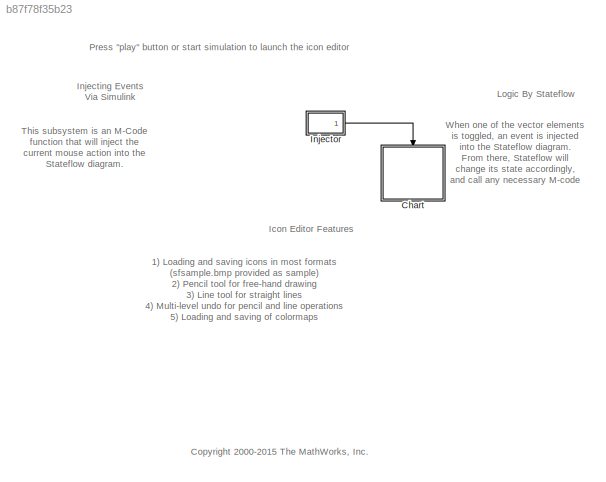
MODEL slx_b87f78f35b23
KIND model
CONFIG AbsTol = auto
CONFIG EnableMultiTasking = on
CONFIG FixedStep = auto
CONFIG MaxStep = auto
CONFIG MinStep = auto
CONFIG RelTol = 1e-3
CONFIG SampleTimeConstraint = Unconstrained
CONFIG Solver = FixedStepDiscrete
CONFIG SolverName = FixedStepDiscrete
CONFIG StartTime = 0.0
CONFIG StopTime = inf
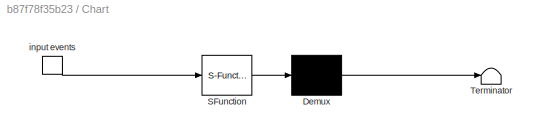
BLOCK [SubSystem] Chart
  ErrorFcn = Stateflow.Translate.translate
  PermitHierarchicalResolution = ExplicitOnly
  Ports = [0, 0, 0, 1]
  RequestExecContextInheritance = off
  SFBlockType = Chart
  TreatAsAtomicUnit = on
  Variant = off
BLOCK [Demux] Chart/ Demux 
  Outputs = 1
  Ports = [1, 1]
BLOCK [S-Function] Chart/ SFunction 
  EnableBusSupport = off
  FunctionName = sf_sfun
  PortCounts = [1 1]
  Ports = [1, 1]
  SFcnIsStateOwnerBlock = off
  SFunctionDeploymentMode = off
  Tag = Stateflow S-Function sfediticon 1
BLOCK [Terminator] Chart/ Terminator 
BLOCK [TriggerPort] Chart/ input events 
  Ports = [0, 1]
  ShowOutputPort = on
  TriggerType = either
  VariantControl = (inherit)
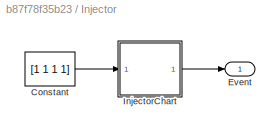
BLOCK [SubSystem] Injector
  Ports = [0, 1]
  RequestExecContextInheritance = off
  Variant = off
BLOCK [Constant] Injector/Constant
  Value = [1 1 1 1]
BLOCK [Outport] Injector/Event
  IconDisplay = Port number
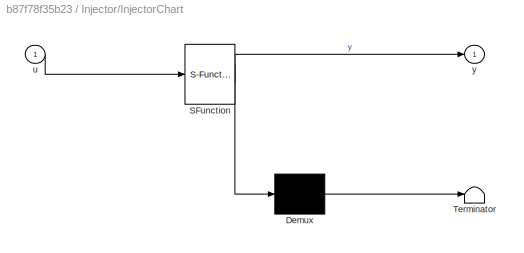
BLOCK [SubSystem] Injector/InjectorChart
  ErrorFcn = Stateflow.Translate.translate
  PermitHierarchicalResolution = ExplicitOnly
  Ports = [1, 1]
  RequestExecContextInheritance = off
  SFBlockType = Chart
  TreatAsAtomicUnit = on
  Variant = off
BLOCK [Demux] Injector/InjectorChart/ Demux 
  Outputs = 1
  Ports = [1, 1]
BLOCK [S-Function] Injector/InjectorChart/ SFunction 
  EnableBusSupport = off
  FunctionName = sf_sfun
  PortCounts = [1 2]
  Ports = [1, 2]
  SFcnIsStateOwnerBlock = off
  SFunctionDeploymentMode = off
  Tag = Stateflow S-Function sfediticon 3
BLOCK [Terminator] Injector/InjectorChart/ Terminator 
BLOCK [Inport] Injector/InjectorChart/u
  IconDisplay = Port number
BLOCK [Outport] Injector/InjectorChart/y
  IconDisplay = Port number
ANNOTATION (root): 1) Loading and saving icons in most formats (sfsample.bmp provided as sample) 2) Pencil tool for free-hand drawing 3) Line tool for straight lines 4) Multi-level undo for pencil and line operations 5) Loading and saving of colormaps (gray.cmp provided as sample) 6) Adding and deleting colors from the current colormap 7) Changing colors in the colormap (this is immediately reflected in the icon)
ANNOTATION (root): <copyright redacted>
ANNOTATION (root): Icon Editor Features
ANNOTATION (root): Injecting Events Via Simulink
ANNOTATION (root): Logic By Stateflow
ANNOTATION (root): Press "play" button or start simulation to launch the icon editor
ANNOTATION (root): This subsystem is an M-Code function that will inject the current mouse action into the Stateflow diagram.
ANNOTATION (root): When one of the vector elements is toggled, an event is injected into the Stateflow diagram. From there, Stateflow will change its state accordingly, and call any necessary M-code helper functions.
LINE Injector/Constant:1 -> Injector/InjectorChart:1
LINE Injector/InjectorChart:1 -> Injector/Event:1
LINE Injector:1 -> Chart:trigger
CHART Chart states=22 transitions=67
  STATE_LABEL 'Main'
  STATE_LABEL "LineDraw\nen: ml.sf_edit_icon('anchor_line');\ndu: ml.sf_edit_icon('render_line');\nex:  ml.sf_edit_icon('commit');"
  STATE_LABEL 'Idle'
  STATE_LABEL "PencilDraw\nen: ml.sf_edit_icon('draw_point');\ndu: ml.sf_edit_icon('draw_point');\nex:  ml.sf_edit_icon('commit');"
  STATE_LABEL "FGColorSelect\nen: ml.sf_edit_icon('cache_color');\nex: ml.sf_edit_icon('fgcolor');"
  STATE_LABEL "{ml.sf_edit_icon('create');}"
  STATE_LABEL '[pressedIcon == LINE_ICON]'
  STATE_LABEL '[pressedIcon == PENCIL_ICON]'
  STATE_LABEL 'NBD[in(ToolBar.Locked)&&...\n         in(Focus.Canvas)]'
  STATE_LABEL 'BU'
  STATE_LABEL '\nNBD[in(Focus.Palette.Swatch)]'
  STATE_LABEL "\nABD[in(Focus.Palette.Swatch)]\n{ml.sf_edit_icon('show_color_menu');}"
  STATE_LABEL "LineDraw\nen: ml.sf_edit_icon('anchor_line');\ndu: ml.sf_edit_icon('render_line');\nex:  ml.sf_edit_icon('commit');"
  STATE_LABEL 'Idle'
  STATE_LABEL "PencilDraw\nen: ml.sf_edit_icon('draw_point');\ndu: ml.sf_edit_icon('draw_point');\nex:  ml.sf_edit_icon('commit');"
  STATE_LABEL "FGColorSelect\nen: ml.sf_edit_icon('cache_color');\nex: ml.sf_edit_icon('fgcolor');"
  STATE_LABEL 'Focus'
  STATE_LABEL 'Canvas'
  STATE_LABEL 'Icon'
  STATE_LABEL 'None'
  STATE_LABEL 'Palette'
  STATE_LABEL 'None'
  STATE_LABEL 'Swatch'
  STATE_LABEL "[ml.sf_edit_icon...\n('over_color_swatch')]"
  STATE_LABEL 'set_focusedIcon()'
  STATE_LABEL "[ml.sf_edit_icon('over_open_tool')] ...\n{focusedIcon = OPEN_ICON;}"
  STATE_LABEL "[ml.sf_edit_icon('over_saveas_tool')]...\n{focusedIcon = SAVE_ICON;}"
  STATE_LABEL "[ml.sf_edit_icon('over_openmap_tool')]...\n {focusedIcon = OPEN_MAP_ICON;}"
  STATE_LABEL "[ml.sf_edit_icon('over_savemap_tool')] ...\n{focusedIcon = SAVE_MAP_ICON;}"
  STATE_LABEL "[ml.sf_edit_icon('over_undo_tool')]...\n {focusedIcon = UNDO_ICON;}"
  STATE_LABEL "[ml.sf_edit_icon('over_line_tool')]...\n {focusedIcon = LINE_ICON;}"
  STATE_LABEL "[ml.sf_edit_icon('over_pencil_tool')]...\n {focusedIcon = PENCIL_ICON;}"
  STATE_LABEL '{focusedIcon = 0;}'
  STATE_LABEL 'Toolbar\nen: set_focusedIcon();\ndu: set_focusedIcon();\nex: focusedIcon = 0;'
  STATE_LABEL "[ml.sf_edit_icon('over_canvas')]"
  STATE_LABEL "[ml.sf_edit_icon('over_icon')]"
  STATE_LABEL "[ml.sf_edit_icon('over_palette')]"
  STATE_LABEL 'BM'
  STATE_LABEL "[ml.sf_edit_icon('over_toolbar')]"
  STATE_LABEL '[in(Toolbar)]'
CHART Injector/InjectorChart states=0 transitions=1
